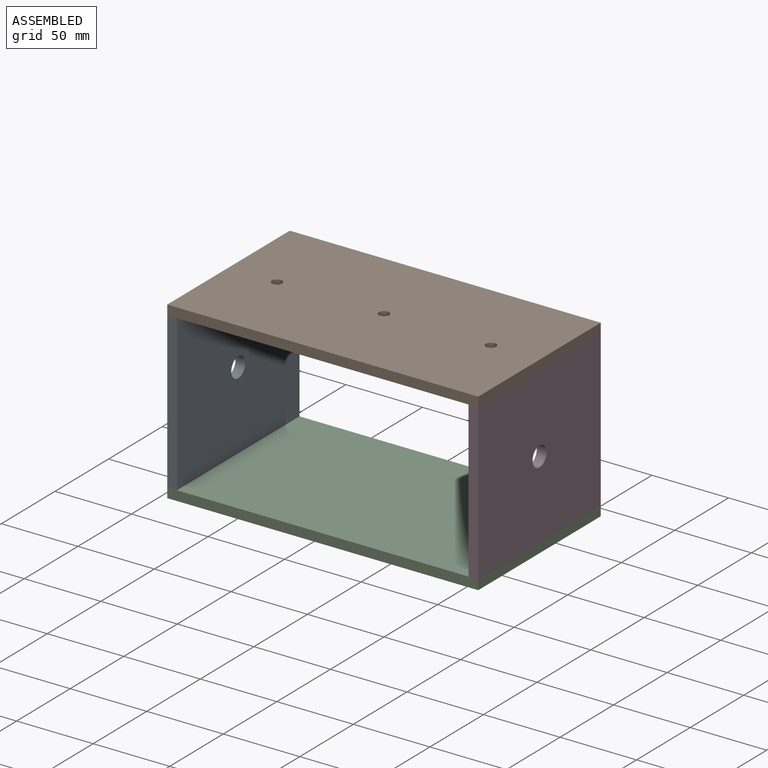
[diagram: assembled view]
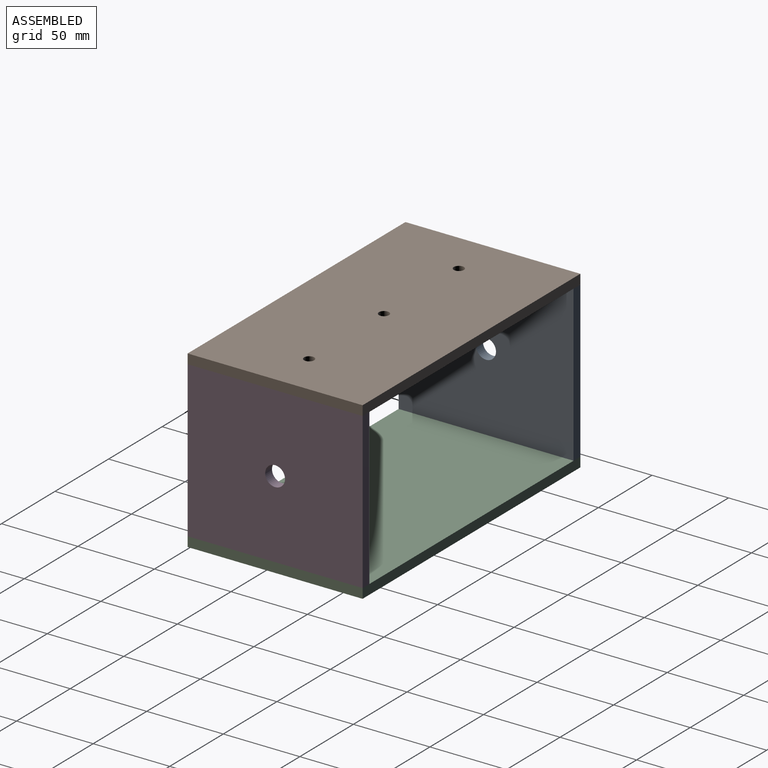
[diagram: assembled view, second angle]
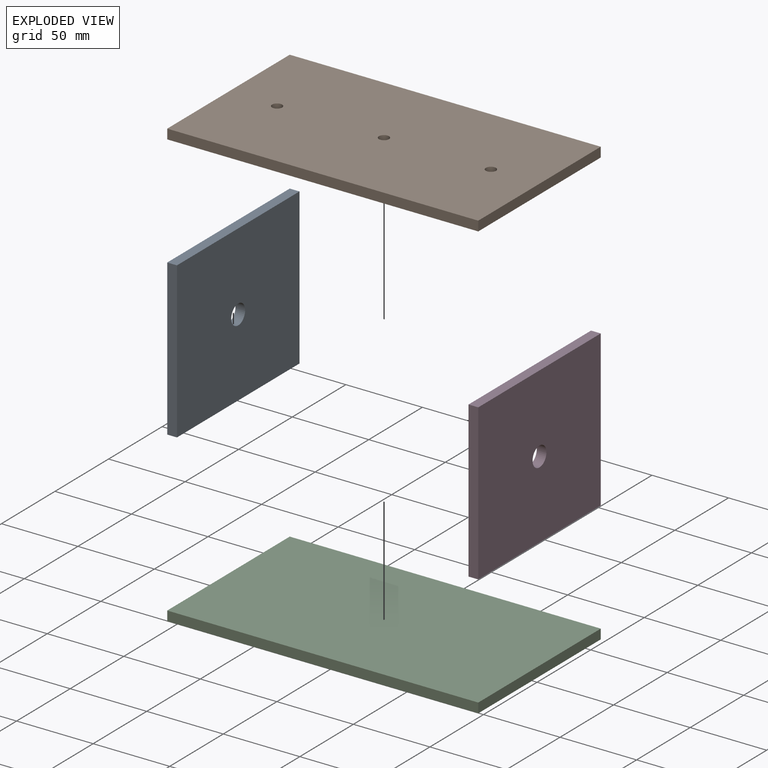
[diagram: exploded view]
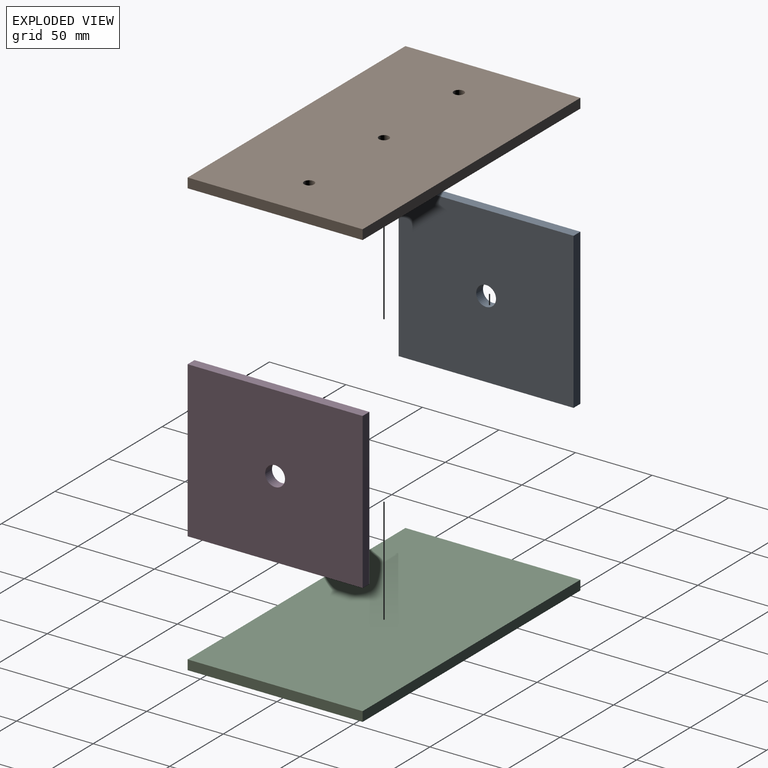
[diagram: exploded view, second angle]
ASSEMBLY  parts=4 mates=3
PART A: 7 faces, bbox 6.4x114.3x101.6 mm
  f0: plane 101.6x6.35mm, normal (0,-1,0), area 645.2mm2, adj f1,f3,f4,f5
  f1: plane 114.3x6.35mm, normal (0,0,-1), area 725.8mm2, adj f0,f2,f3,f4
  f2: plane 101.6x6.35mm, normal (0,1,0), area 645.2mm2, adj f1,f3,f4,f5
  f3: plane 114.3x101.6mm, normal (1,0,0), area 11481.1mm2, adj f0,f1,f2,f5,f6
  f4: plane 114.3x101.6mm, normal (-1,0,0), area 11481.1mm2, adj f0,f1,f2,f5,f6
  f5: plane 114.3x6.35mm, normal (0,0,1), area 725.8mm2, adj f0,f2,f3,f4
  f6: cylinder r=6.48mm len=12.95mm, axis (1,0,0), area 258.4mm2, adj f3,f4
PART B: 9 faces, bbox 203.2x114.3x6.4 mm
  f0: plane 203.2x114.3mm, normal (0,0,-1), area 23123mm2, adj f1,f3,f4,f5,f6,f7,f8
  f1: plane 114.3x6.35mm, normal (1,0,0), area 725.8mm2, adj f0,f2,f4,f5
  f2: plane 203.2x114.3mm, normal (0,0,1), area 23123mm2, adj f1,f3,f4,f5,f6,f7,f8
  f3: plane 114.3x6.35mm, normal (-1,0,0), area 725.8mm2, adj f0,f2,f4,f5
  f4: plane 203.2x6.35mm, normal (0,-1,0), area 1290.3mm2, adj f0,f1,f2,f3
  f5: plane 203.2x6.35mm, normal (0,1,0), area 1290.3mm2, adj f0,f1,f2,f3
  f6: cylinder r=3.3mm len=6.6mm, axis (0,0,1), area 131.7mm2, adj f0,f2
  f7: cylinder r=3.3mm len=6.6mm, axis (0,0,1), area 131.7mm2, adj f0,f2
  f8: cylinder r=3.3mm len=6.6mm, axis (0,0,1), area 131.7mm2, adj f0,f2
PART C: 6 faces, bbox 203.2x114.3x6.4 mm
  f0: plane 203.2x114.3mm, normal (0,0,1), area 23225.8mm2, adj f1,f3,f4,f5
  f1: plane 114.3x6.35mm, normal (-1,0,0), area 725.8mm2, adj f0,f2,f4,f5
  f2: plane 203.2x114.3mm, normal (0,0,-1), area 23225.8mm2, adj f1,f3,f4,f5
  f3: plane 114.3x6.35mm, normal (1,0,0), area 725.8mm2, adj f0,f2,f4,f5
  f4: plane 203.2x6.35mm, normal (0,-1,0), area 1290.3mm2, adj f0,f1,f2,f3
  f5: plane 203.2x6.35mm, normal (0,1,0), area 1290.3mm2, adj f0,f1,f2,f3
PART D: 7 faces, bbox 6.4x114.3x101.6 mm
  f0: plane 101.6x6.35mm, normal (0,-1,0), area 645.2mm2, adj f1,f3,f4,f5
  f1: plane 114.3x101.6mm, normal (-1,0,0), area 11481.1mm2, adj f0,f2,f3,f4,f6
  f2: plane 101.6x6.35mm, normal (0,1,0), area 645.2mm2, adj f1,f3,f4,f5
  f3: plane 114.3x6.35mm, normal (0,0,-1), area 725.8mm2, adj f0,f1,f2,f5
  f4: plane 114.3x6.35mm, normal (0,0,1), area 725.8mm2, adj f0,f1,f2,f5
  f5: plane 114.3x101.6mm, normal (1,0,0), area 11481.1mm2, adj f0,f2,f3,f4,f6
  f6: cylinder r=6.48mm len=12.95mm, axis (1,0,0), area 258.4mm2, adj f1,f5
PLACE A at identity
PLACE B at identity
PLACE C at identity
PLACE D at identity
MATE fastened C.f0 <-> A.f1  axis (0,0,1) through (-101.6,57.15,6.35)mm
MATE fastened C.f0 <-> D.f3  axis (0,0,1) through (101.6,57.15,6.35)mm
MATE fastened B.f0 <-> D.f4  axis (0,0,1) through (101.6,57.15,107.95)mm
